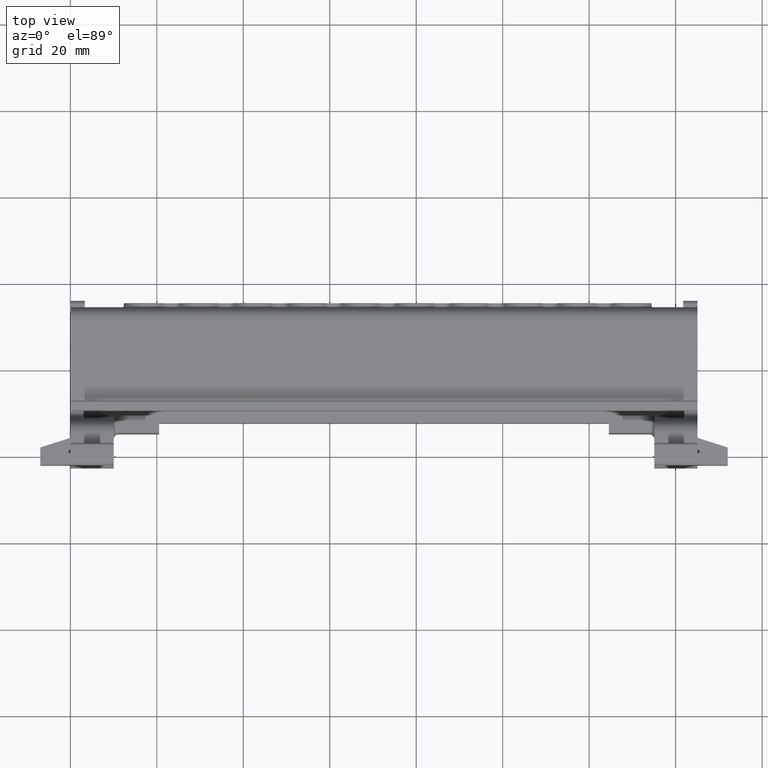
[diagram: clean part render]
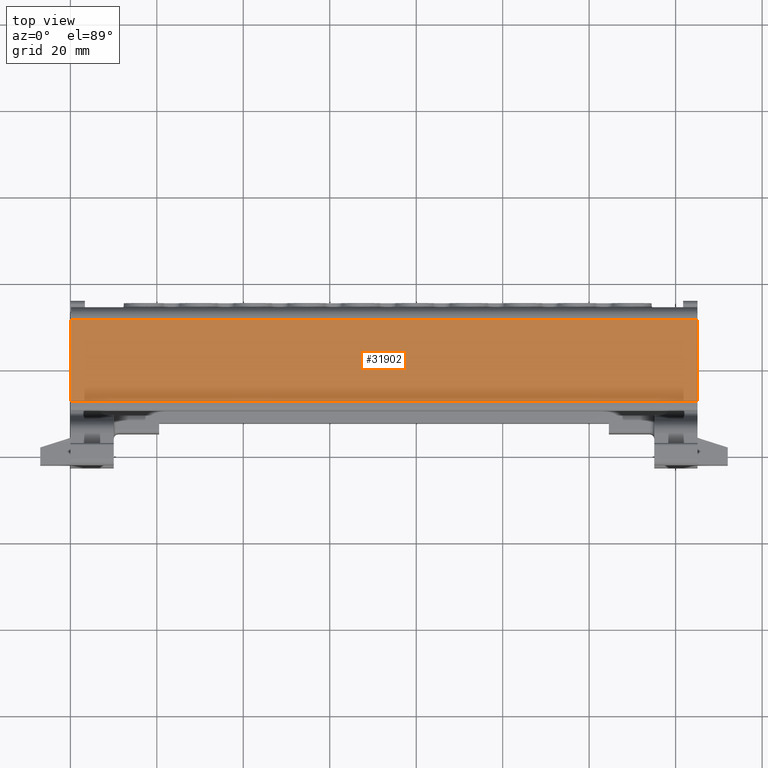
[diagram: same view with one face highlighted and labeled with its STEP entity id]
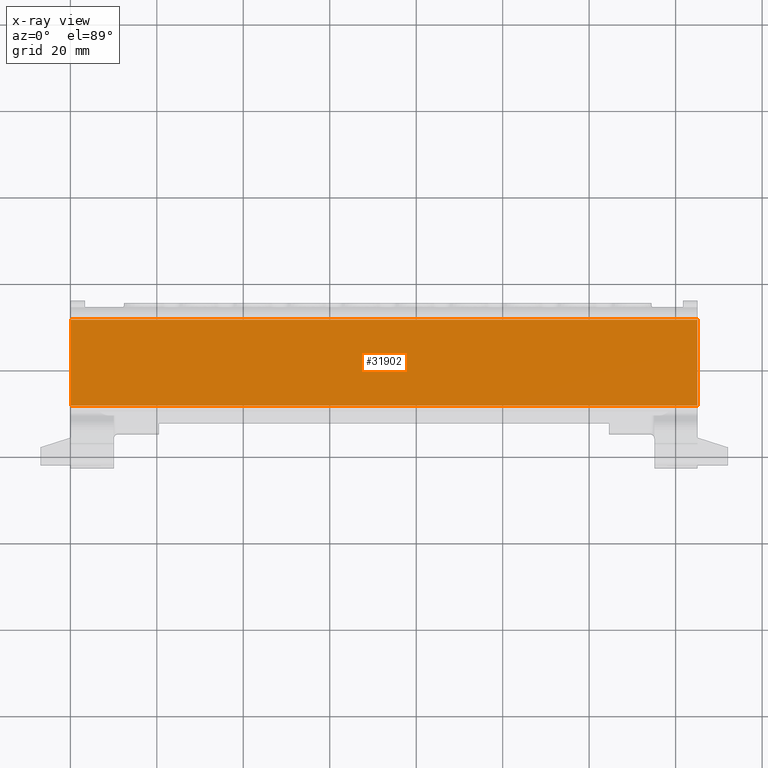
[diagram: x-ray of the same camera — body ghosted, the highlighted face saturated]
A machine part, top view. The second image highlights one B-rep face of the part: STEP entity #31902.
The next image is the same camera in x-ray: the body ghosted, the highlighted face saturated — about 0% of this face is hidden behind the body in this view.
In plain terms, the highlighted planar face has unit normal (0, 0.0175, 0.9998).
Its self-contained STEP definition (entity closure, byte-faithful):
#1075 = LINE ( 'NONE', #1076, #14527 ) ;
#1076 = CARTESIAN_POINT ( 'NONE',  ( 12.64730230417520800, 51.37580298092296300, 47.42096376908671800 ) ) ;
#1078 = DIRECTION ( 'NONE',  ( 1.000000000000000000, -4.426859643414446900E-017, -2.536146191158165200E-015 ) ) ;
#6561 = EDGE_CURVE ( 'NONE', #17324, #17319, #15287, .T. ) ;
#6564 = EDGE_CURVE ( 'NONE', #17323, #17324, #15267, .T. ) ;
#6565 = EDGE_CURVE ( 'NONE', #17323, #17335, #15315, .T. ) ;
#6625 = EDGE_CURVE ( 'NONE', #17319, #17335, #1075, .T. ) ;
#11037 = ORIENTED_EDGE ( 'NONE', *, *, #6564, .T. ) ;
#11049 = ORIENTED_EDGE ( 'NONE', *, *, #6561, .T. ) ;
#11078 = ORIENTED_EDGE ( 'NONE', *, *, #6625, .T. ) ;
#11120 = ORIENTED_EDGE ( 'NONE', *, *, #6565, .F. ) ;
#14430 = VECTOR ( 'NONE', #15305, 1000.000000000000000 ) ;
#14456 = VECTOR ( 'NONE', #15263, 1000.000000000000100 ) ;
#14463 = VECTOR ( 'NONE', #15314, 1000.000000000000000 ) ;
#14527 = VECTOR ( 'NONE', #1078, 1000.000000000000000 ) ;
#15263 = DIRECTION ( 'NONE',  ( -1.395284684619462200E-015, -0.9998476951563910500, 0.01745240643729461700 ) ) ;
#15267 = LINE ( 'NONE', #15319, #14463 ) ;
#15282 = CARTESIAN_POINT ( 'NONE',  ( -99.84769769582476300, 71.26518370224448500, 47.07379333721404200 ) ) ;
#15287 = LINE ( 'NONE', #15282, #14456 ) ;
#15305 = DIRECTION ( 'NONE',  ( -1.046463513464596200E-015, -0.9998476951563910500, 0.01745240643729391300 ) ) ;
#15314 = DIRECTION ( 'NONE',  ( -1.000000000000000000, 4.426859643414446900E-017, 2.536146191158165200E-015 ) ) ;
#15315 = LINE ( 'NONE', #15333, #14430 ) ;
#15319 = CARTESIAN_POINT ( 'NONE',  ( 12.64730230417520800, 71.26518370224435700, 47.07379333721380700 ) ) ;
#15333 = CARTESIAN_POINT ( 'NONE',  ( 44.99230230417517600, 71.26518370224435700, 47.07379333721368700 ) ) ;
#15945 = EDGE_LOOP ( 'NONE', ( #11037, #11049, #11078, #11120 ) ) ;
#17319 = VERTEX_POINT ( 'NONE', #25927 ) ;
#17323 = VERTEX_POINT ( 'NONE', #25931 ) ;
#17324 = VERTEX_POINT ( 'NONE', #25934 ) ;
#17335 = VERTEX_POINT ( 'NONE', #25915 ) ;
#21476 = AXIS2_PLACEMENT_3D ( 'NONE', #29461, #29371, #29407 ) ;
#25915 = CARTESIAN_POINT ( 'NONE',  ( 44.99230230417515500, 51.37580298092296300, 47.42096376908661900 ) ) ;
#25927 = CARTESIAN_POINT ( 'NONE',  ( -99.84769769582480600, 51.37580298092302700, 47.42096376908698800 ) ) ;
#25931 = CARTESIAN_POINT ( 'NONE',  ( 44.99230230417517600, 71.26518370224437100, 47.07379333721370100 ) ) ;
#25934 = CARTESIAN_POINT ( 'NONE',  ( -99.84769769582476300, 71.26518370224444300, 47.07379333721406300 ) ) ;
#29344 = PLANE ( 'NONE',  #21476 ) ;
#29371 = DIRECTION ( 'NONE',  ( 2.536532517346528500E-015, 0.01745240643729414200, 0.9998476951563910500 ) ) ;
#29407 = DIRECTION ( 'NONE',  ( 0.0000000000000000000, -0.9998476951563910500, 0.01745240643729414200 ) ) ;
#29441 = FACE_OUTER_BOUND ( 'NONE', #15945, .T. ) ;
#29461 = CARTESIAN_POINT ( 'NONE',  ( 12.64730230417520800, 62.90220875422243600, 47.21976960792467500 ) ) ;
#31902 = ADVANCED_FACE ( 'NONE', ( #29441 ), #29344, .T. ) ;